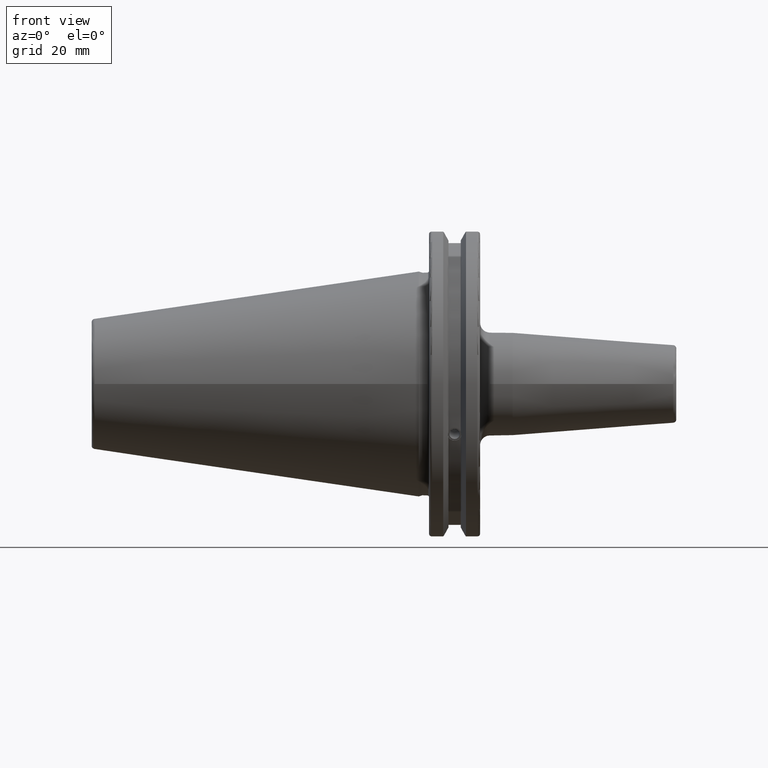
[diagram: clean part render]
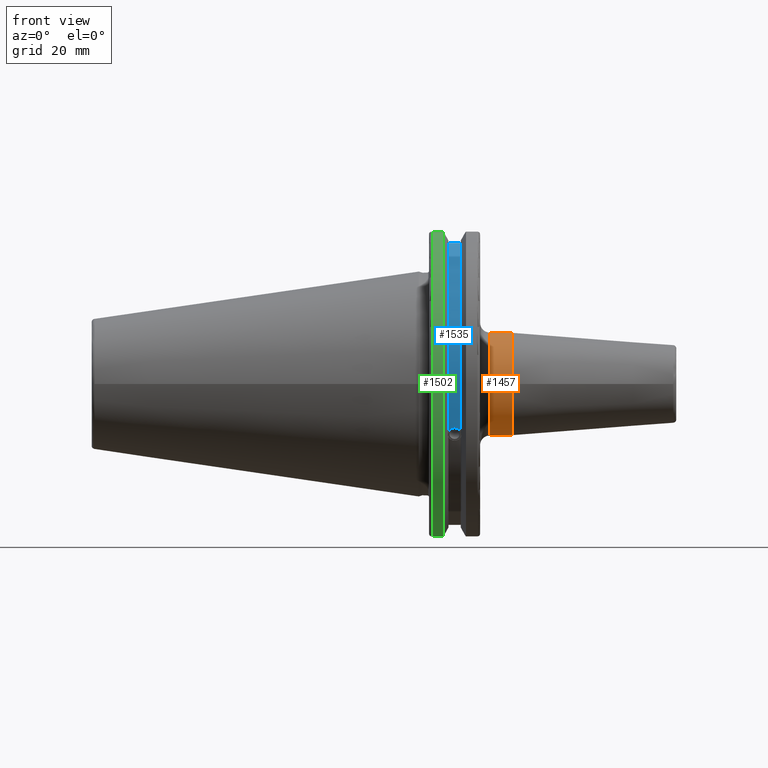
[diagram: same view with three faces highlighted in distinct colors, each labeled with its STEP entity id]
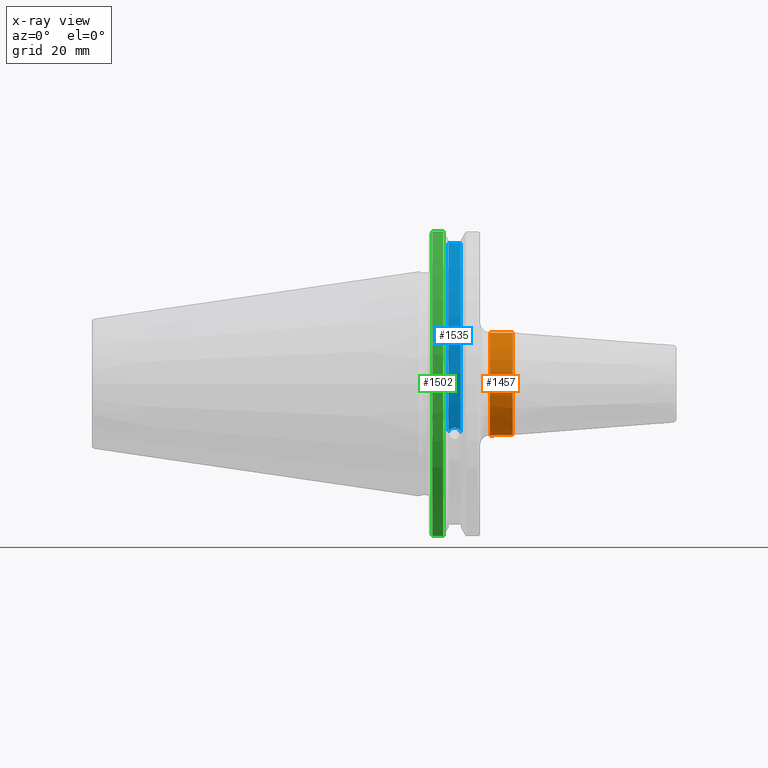
[diagram: x-ray of the same camera — body ghosted, the three highlighted faces saturated]
A machine part, front view with three faces highlighted in distinct colors.
The next image is the same camera in x-ray (body ghosted, the three faces saturated) — at least one of them is partly hidden behind the body in this view.
Their STEP definitions:

[orange] entity #1457 — the highlighted cylindrical surface (bore or boss wall) has radius 16 mm, axis along (1, 0, 0).
#86=LINE('',#2181,#178);
#178=VECTOR('',#1770,16.);
#269=CYLINDRICAL_SURFACE('',#1580,16.);
#358=FACE_OUTER_BOUND('',#445,.T.);
#445=EDGE_LOOP('',(#1021,#1022,#1023,#1024,#1025));
#553=CIRCLE('',#1574,16.);
#554=CIRCLE('',#1576,16.);
#557=CIRCLE('',#1579,16.);
#627=VERTEX_POINT('',#2169);
#628=VERTEX_POINT('',#2173);
#629=VERTEX_POINT('',#2174);
#781=EDGE_CURVE('',#627,#627,#553,.T.);
#782=EDGE_CURVE('',#628,#629,#554,.T.);
#785=EDGE_CURVE('',#629,#628,#557,.T.);
#786=EDGE_CURVE('',#627,#628,#86,.T.);
#1021=ORIENTED_EDGE('',*,*,#781,.F.);
#1022=ORIENTED_EDGE('',*,*,#786,.T.);
#1023=ORIENTED_EDGE('',*,*,#785,.F.);
#1024=ORIENTED_EDGE('',*,*,#782,.F.);
#1025=ORIENTED_EDGE('',*,*,#786,.F.);
#1457=ADVANCED_FACE('',(#358),#269,.T.);
#1574=AXIS2_PLACEMENT_3D('',#2171,#1756,#1757);
#1576=AXIS2_PLACEMENT_3D('',#2175,#1760,#1761);
#1579=AXIS2_PLACEMENT_3D('',#2179,#1766,#1767);
#1580=AXIS2_PLACEMENT_3D('',#2180,#1768,#1769);
#1756=DIRECTION('center_axis',(1.,0.,0.));
#1757=DIRECTION('ref_axis',(0.,0.,-1.));
#1760=DIRECTION('center_axis',(-1.,0.,0.));
#1761=DIRECTION('ref_axis',(0.,-1.,-1.22464679914735E-16));
#1766=DIRECTION('center_axis',(-1.,0.,0.));
#1767=DIRECTION('ref_axis',(0.,-1.,-1.22464679914735E-16));
#1768=DIRECTION('center_axis',(1.,0.,0.));
#1769=DIRECTION('ref_axis',(0.,1.,0.));
#1770=DIRECTION('',(-1.,0.,0.));
#2169=CARTESIAN_POINT('',(29.1751810553009,-16.,-1.95943487863577E-15));
#2171=CARTESIAN_POINT('Origin',(29.1751810553009,0.,0.));
#2173=CARTESIAN_POINT('',(22.05,-16.,-1.95943487863577E-15));
#2174=CARTESIAN_POINT('',(22.05,-1.95943487863577E-15,-16.));
#2175=CARTESIAN_POINT('Origin',(22.05,0.,0.));
#2179=CARTESIAN_POINT('Origin',(22.05,0.,0.));
#2180=CARTESIAN_POINT('Origin',(24.1125905276505,0.,0.));
#2181=CARTESIAN_POINT('',(24.1125905276505,-16.,-1.95943487863577E-15));

[blue] entity #1535 — the highlighted cylindrical surface (partial cylindrical patch) has radius 45.6435 mm, axis along (1, 0, 0).
#42=B_SPLINE_CURVE_WITH_KNOTS('',3,(#2430,#2431,#2432,#2433,#2434,#2435,
#2436,#2437,#2438,#2439,#2440,#2441,#2442,#2443),.UNSPECIFIED.,.F.,.F.,
(4,2,2,2,2,2,4),(0.40154831257669,0.474697095495631,0.553813286063443,0.632929476631254,
0.712045667199066,0.791161857766877,0.864310640685818),.UNSPECIFIED.);
#147=LINE('',#2909,#239);
#239=VECTOR('',#2001,10.);
#294=CYLINDRICAL_SURFACE('',#1721,45.6435);
#436=FACE_OUTER_BOUND('',#542,.T.);
#542=EDGE_LOOP('',(#1434,#1435,#1436,#1437));
#618=CIRCLE('',#1720,45.6435);
#619=CIRCLE('',#1722,45.6435);
#664=VERTEX_POINT('',#2427);
#665=VERTEX_POINT('',#2429);
#744=VERTEX_POINT('',#2906);
#745=VERTEX_POINT('',#2908);
#829=EDGE_CURVE('',#665,#664,#42,.T.);
#934=EDGE_CURVE('',#745,#744,#147,.T.);
#992=EDGE_CURVE('',#744,#665,#618,.T.);
#993=EDGE_CURVE('',#745,#664,#619,.T.);
#1434=ORIENTED_EDGE('',*,*,#829,.T.);
#1435=ORIENTED_EDGE('',*,*,#993,.F.);
#1436=ORIENTED_EDGE('',*,*,#934,.T.);
#1437=ORIENTED_EDGE('',*,*,#992,.T.);
#1535=ADVANCED_FACE('',(#436),#294,.T.);
#1720=AXIS2_PLACEMENT_3D('',#3075,#2138,#2139);
#1721=AXIS2_PLACEMENT_3D('',#3076,#2140,#2141);
#1722=AXIS2_PLACEMENT_3D('',#3077,#2142,#2143);
#2001=DIRECTION('',(-1.,0.,0.));
#2138=DIRECTION('center_axis',(1.,0.,0.));
#2139=DIRECTION('ref_axis',(0.,0.,-1.));
#2140=DIRECTION('center_axis',(1.,0.,0.));
#2141=DIRECTION('ref_axis',(0.,-0.888619069115281,0.458645996390125));
#2142=DIRECTION('center_axis',(1.,0.,0.));
#2143=DIRECTION('ref_axis',(0.,0.,-1.));
#2427=CARTESIAN_POINT('',(13.0491,-43.1779814500336,-14.7983448449669));
#2429=CARTESIAN_POINT('',(9.2191,-43.1779814500336,-14.7983448449669));
#2430=CARTESIAN_POINT('Ctrl Pts',(9.2191,-43.1779814500335,-14.7983448449669));
#2431=CARTESIAN_POINT('Ctrl Pts',(9.32532177598176,-43.2545173750974,-14.5750315766731));
#2432=CARTESIAN_POINT('Ctrl Pts',(9.47680807557665,-43.3223492818373,-14.3712521044637));
#2433=CARTESIAN_POINT('Ctrl Pts',(9.83560503400179,-43.4340904392251,-14.0300988117073));
#2434=CARTESIAN_POINT('Ctrl Pts',(10.0717203280543,-43.4832903960863,-13.8760243976176));
#2435=CARTESIAN_POINT('Ctrl Pts',(10.5891059167872,-43.54802519266,-13.6715068146718));
#2436=CARTESIAN_POINT('Ctrl Pts',(10.870379364774,-43.5636826100883,-13.6211104428929));
#2437=CARTESIAN_POINT('Ctrl Pts',(11.397820635226,-43.5636826100883,-13.6211104428929));
#2438=CARTESIAN_POINT('Ctrl Pts',(11.6790940832128,-43.54802519266,-13.6715068146718));
#2439=CARTESIAN_POINT('Ctrl Pts',(12.1964796719457,-43.4832903960863,-13.8760243976176));
#2440=CARTESIAN_POINT('Ctrl Pts',(12.4325949659982,-43.4340904392251,-14.0300988117073));
#2441=CARTESIAN_POINT('Ctrl Pts',(12.7913919244233,-43.3223492818373,-14.3712521044637));
#2442=CARTESIAN_POINT('Ctrl Pts',(12.9428782240182,-43.2545173750974,-14.5750315766731));
#2443=CARTESIAN_POINT('Ctrl Pts',(13.0491,-43.1779814500335,-14.7983448449669));
#2906=CARTESIAN_POINT('',(9.2191,-12.95,43.7678716897452));
#2908=CARTESIAN_POINT('',(13.0491,-12.95,43.7678716897452));
#2909=CARTESIAN_POINT('',(11.1341,-12.95,43.7678716897452));
#3075=CARTESIAN_POINT('Origin',(9.2191,0.,0.));
#3076=CARTESIAN_POINT('Origin',(11.1341,0.,0.));
#3077=CARTESIAN_POINT('Origin',(13.0491,0.,0.));

[green] entity #1502 — the highlighted cylindrical surface (partial cylindrical patch) has radius 49.2125 mm, axis along (1, 0, 0).
#153=LINE('',#2949,#245);
#154=LINE('',#2955,#246);
#245=VECTOR('',#2015,10.);
#246=VECTOR('',#2018,10.);
#287=CYLINDRICAL_SURFACE('',#1670,49.2125);
#403=FACE_OUTER_BOUND('',#506,.T.);
#506=EDGE_LOOP('',(#1285,#1286,#1287,#1288));
#600=CIRCLE('',#1668,49.2125);
#601=CIRCLE('',#1671,49.2125);
#748=VERTEX_POINT('',#2928);
#749=VERTEX_POINT('',#2937);
#750=VERTEX_POINT('',#2948);
#751=VERTEX_POINT('',#2954);
#943=EDGE_CURVE('',#748,#749,#600,.T.);
#945=EDGE_CURVE('',#749,#750,#153,.T.);
#947=EDGE_CURVE('',#751,#748,#154,.T.);
#948=EDGE_CURVE('',#750,#751,#601,.T.);
#1285=ORIENTED_EDGE('',*,*,#943,.F.);
#1286=ORIENTED_EDGE('',*,*,#947,.F.);
#1287=ORIENTED_EDGE('',*,*,#948,.F.);
#1288=ORIENTED_EDGE('',*,*,#945,.F.);
#1502=ADVANCED_FACE('',(#403),#287,.T.);
#1668=AXIS2_PLACEMENT_3D('',#2938,#2011,#2012);
#1670=AXIS2_PLACEMENT_3D('',#2953,#2016,#2017);
#1671=AXIS2_PLACEMENT_3D('',#2956,#2019,#2020);
#2011=DIRECTION('center_axis',(-1.,0.,0.));
#2012=DIRECTION('ref_axis',(0.,-1.,1.60812264967664E-16));
#2015=DIRECTION('',(1.,0.,0.));
#2016=DIRECTION('center_axis',(1.,0.,0.));
#2017=DIRECTION('ref_axis',(0.,-1.,1.22464679914735E-16));
#2018=DIRECTION('',(-1.,0.,0.));
#2019=DIRECTION('center_axis',(1.,0.,0.));
#2020=DIRECTION('ref_axis',(0.,0.,-1.));
#2928=CARTESIAN_POINT('',(4.175,-13.4317035994433,-47.3440544806494));
#2937=CARTESIAN_POINT('',(4.175,-13.4317035994433,47.3440544806494));
#2938=CARTESIAN_POINT('Origin',(4.175,0.,0.));
#2948=CARTESIAN_POINT('',(7.60799096595127,-13.4317035994433,47.3440544806494));
#2949=CARTESIAN_POINT('',(5.39149548297563,-13.4317035994433,47.3440544806494));
#2953=CARTESIAN_POINT('Origin',(5.39149548297563,0.,0.));
#2954=CARTESIAN_POINT('',(7.60799096595127,-13.4317035994433,-47.3440544806494));
#2955=CARTESIAN_POINT('',(5.39149548297563,-13.4317035994433,-47.3440544806494));
#2956=CARTESIAN_POINT('Origin',(7.60799096595127,0.,0.));